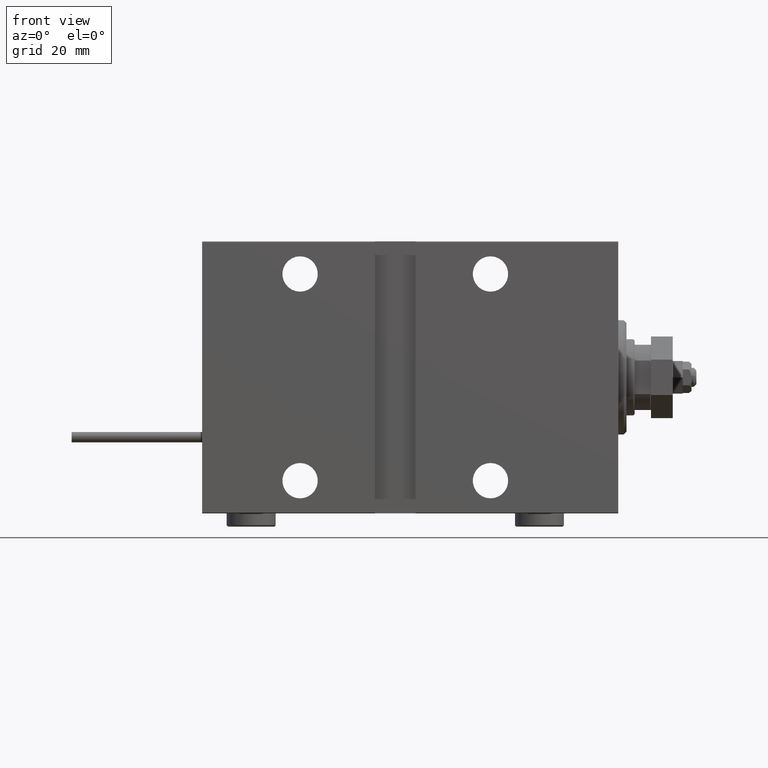
[diagram: clean part render]
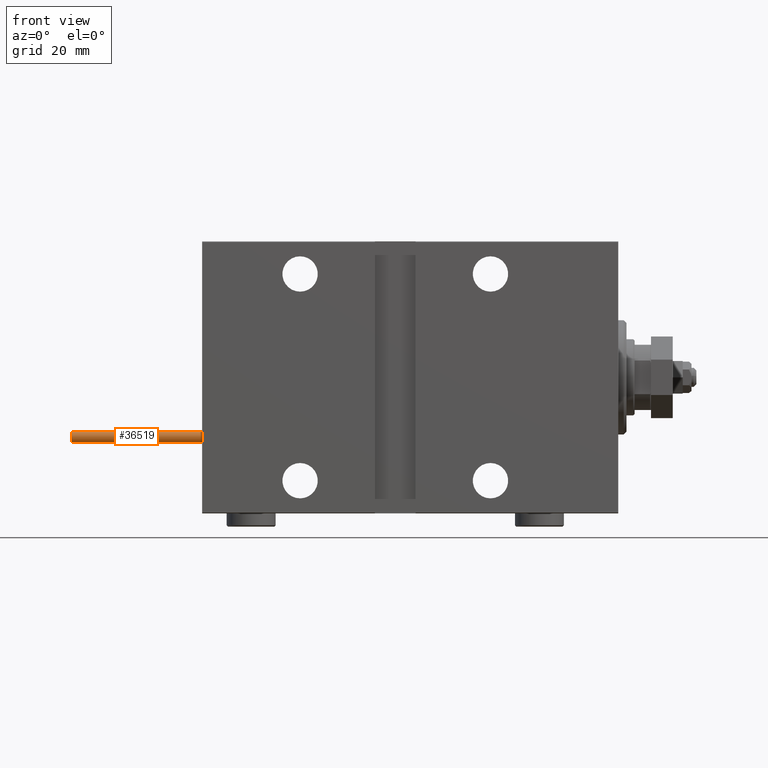
[diagram: same view with one face highlighted and labeled with its STEP entity id]
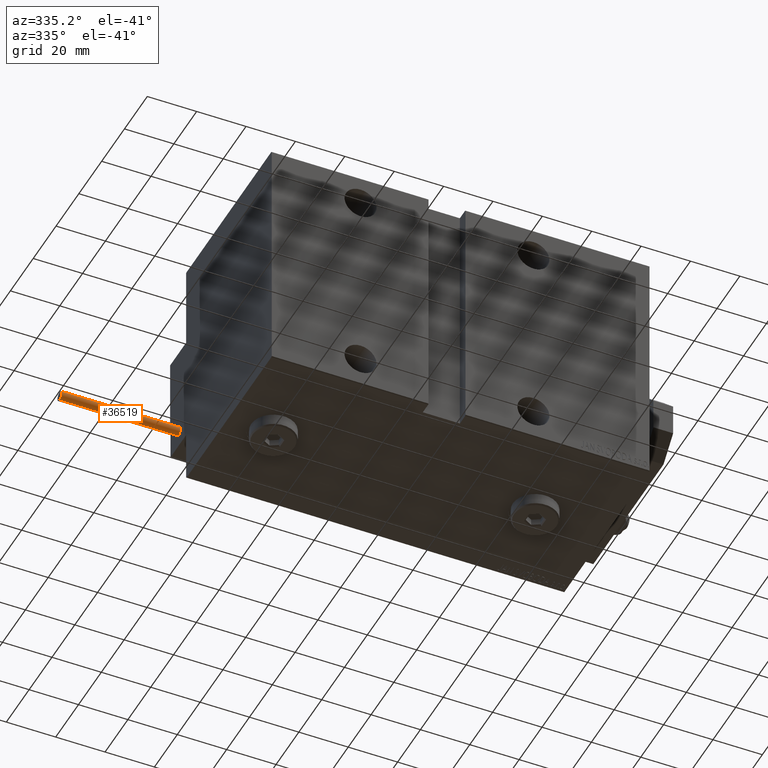
[diagram: same view with one face highlighted and labeled with its STEP entity id]
A machine part, front view. The second image highlights one B-rep face of the part: STEP entity #36519.
A second angle (auxiliary view) of the same face is appended — the face is thin or edge-on in the first view.
In plain terms, the highlighted cylindrical surface (edge-blend (fillet) strip) has radius 1.9 mm, axis along (1, -0, 0).
Its self-contained STEP definition (entity closure, byte-faithful):
#2418 = EDGE_CURVE ( 'NONE', #40801, #49055, #36176, .T. ) ;
#3022 = CARTESIAN_POINT ( 'NONE',  ( 0.000000000000000000, 0.000000000000000000, 0.000000000000000000 ) ) ;
#5080 = CIRCLE ( 'NONE', #27398, 1.899999999999999467 ) ;
#5083 = CARTESIAN_POINT ( 'NONE',  ( 1.899999999999999467, 2.326828918379970872E-16, 48.00000000000000000 ) ) ;
#5620 = EDGE_CURVE ( 'NONE', #40801, #32559, #46833, .T. ) ;
#6235 = CARTESIAN_POINT ( 'NONE',  ( 1.899999999999999467, 2.326828918379970872E-16, 48.00000000000000000 ) ) ;
#6308 = AXIS2_PLACEMENT_3D ( 'NONE', #34323, #45527, #41637 ) ;
#8443 = ORIENTED_EDGE ( 'NONE', *, *, #48562, .T. ) ;
#10741 = CARTESIAN_POINT ( 'NONE',  ( -1.899999999999999467, 0.000000000000000000, 48.00000000000000000 ) ) ;
#10820 = DIRECTION ( 'NONE',  ( 1.000000000000000000, 0.000000000000000000, 0.000000000000000000 ) ) ;
#16156 = DIRECTION ( 'NONE',  ( -0.000000000000000000, -0.000000000000000000, -1.000000000000000000 ) ) ;
#17192 = ORIENTED_EDGE ( 'NONE', *, *, #5620, .T. ) ;
#18597 = DIRECTION ( 'NONE',  ( 0.000000000000000000, 0.000000000000000000, 1.000000000000000000 ) ) ;
#20304 = CYLINDRICAL_SURFACE ( 'NONE', #44581, 1.899999999999999467 ) ;
#20447 = VECTOR ( 'NONE', #50471, 1000.000000000000000 ) ;
#21545 = ORIENTED_EDGE ( 'NONE', *, *, #21735, .F. ) ;
#21735 = EDGE_CURVE ( 'NONE', #49055, #42940, #40924, .T. ) ;
#24716 = FACE_OUTER_BOUND ( 'NONE', #43210, .T. ) ;
#25474 = CARTESIAN_POINT ( 'NONE',  ( -1.899999999999999467, 0.000000000000000000, 48.00000000000000000 ) ) ;
#27398 = AXIS2_PLACEMENT_3D ( 'NONE', #3022, #18597, #10820 ) ;
#30985 = CARTESIAN_POINT ( 'NONE',  ( 1.899999999999999467, 2.326828918379970872E-16, 0.000000000000000000 ) ) ;
#32559 = VERTEX_POINT ( 'NONE', #45372 ) ;
#34323 = CARTESIAN_POINT ( 'NONE',  ( 0.000000000000000000, 0.000000000000000000, 48.00000000000000000 ) ) ;
#36176 = CIRCLE ( 'NONE', #6308, 1.899999999999999467 ) ;
#36243 = DIRECTION ( 'NONE',  ( -0.000000000000000000, -0.000000000000000000, -1.000000000000000000 ) ) ;
#36519 = ADVANCED_FACE ( 'NONE', ( #24716 ), #20304, .T. ) ;
#36899 = CARTESIAN_POINT ( 'NONE',  ( 0.000000000000000000, 0.000000000000000000, 48.00000000000000000 ) ) ;
#40801 = VERTEX_POINT ( 'NONE', #25474 ) ;
#40924 = LINE ( 'NONE', #5083, #49179 ) ;
#41637 = DIRECTION ( 'NONE',  ( 1.000000000000000000, 0.000000000000000000, 0.000000000000000000 ) ) ;
#42081 = ORIENTED_EDGE ( 'NONE', *, *, #2418, .F. ) ;
#42940 = VERTEX_POINT ( 'NONE', #30985 ) ;
#43210 = EDGE_LOOP ( 'NONE', ( #21545, #42081, #17192, #8443 ) ) ;
#43951 = DIRECTION ( 'NONE',  ( -1.000000000000000000, 0.000000000000000000, 0.000000000000000000 ) ) ;
#44581 = AXIS2_PLACEMENT_3D ( 'NONE', #36899, #16156, #43951 ) ;
#45372 = CARTESIAN_POINT ( 'NONE',  ( -1.899999999999999467, 0.000000000000000000, 0.000000000000000000 ) ) ;
#45527 = DIRECTION ( 'NONE',  ( 0.000000000000000000, 0.000000000000000000, 1.000000000000000000 ) ) ;
#46833 = LINE ( 'NONE', #10741, #20447 ) ;
#48562 = EDGE_CURVE ( 'NONE', #32559, #42940, #5080, .T. ) ;
#49055 = VERTEX_POINT ( 'NONE', #6235 ) ;
#49179 = VECTOR ( 'NONE', #36243, 1000.000000000000000 ) ;
#50471 = DIRECTION ( 'NONE',  ( -0.000000000000000000, -0.000000000000000000, -1.000000000000000000 ) ) ;